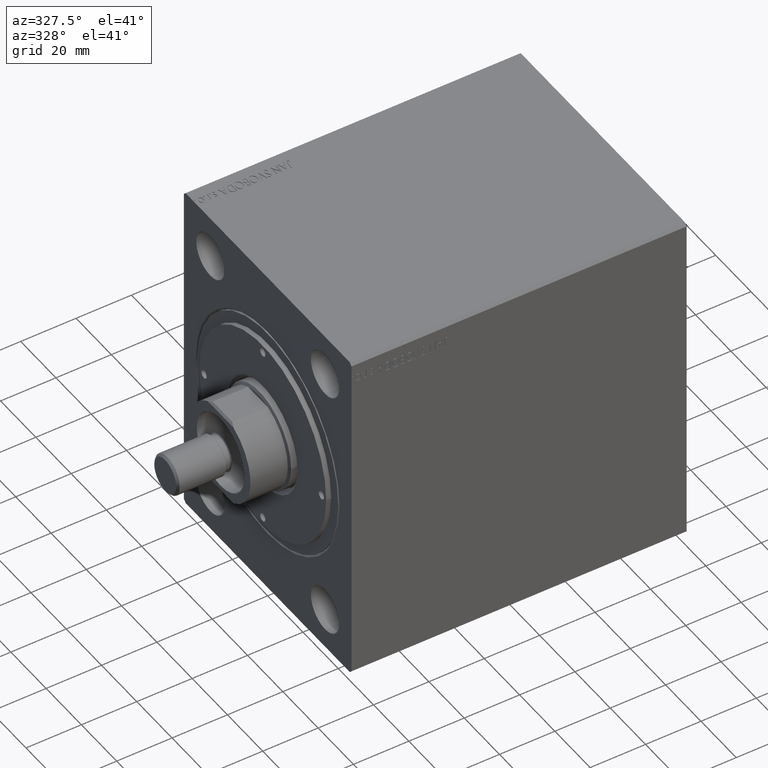
[diagram: clean part render]
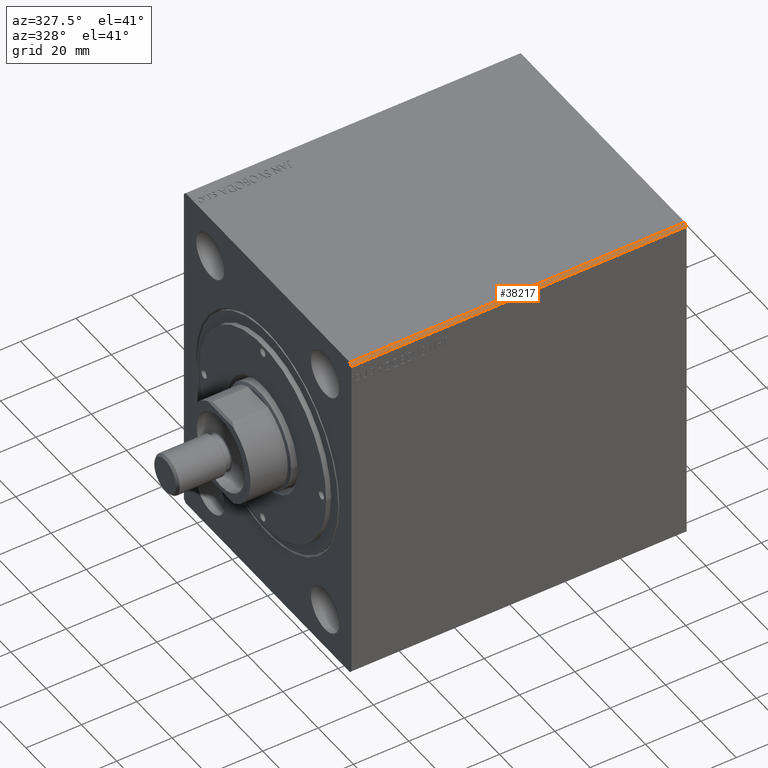
[diagram: same view with one face highlighted and labeled with its STEP entity id]
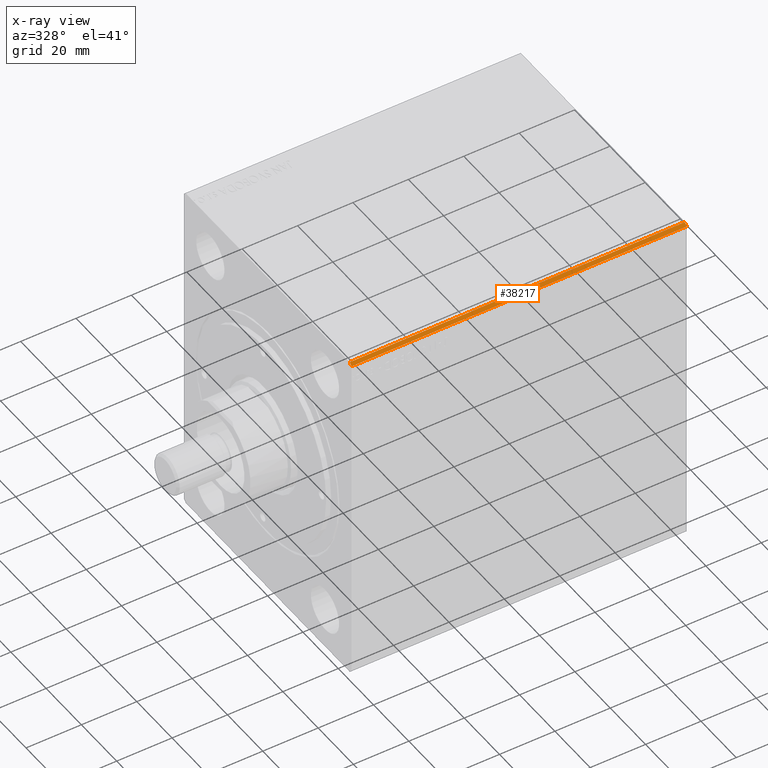
[diagram: x-ray of the same camera — body ghosted, the highlighted face saturated]
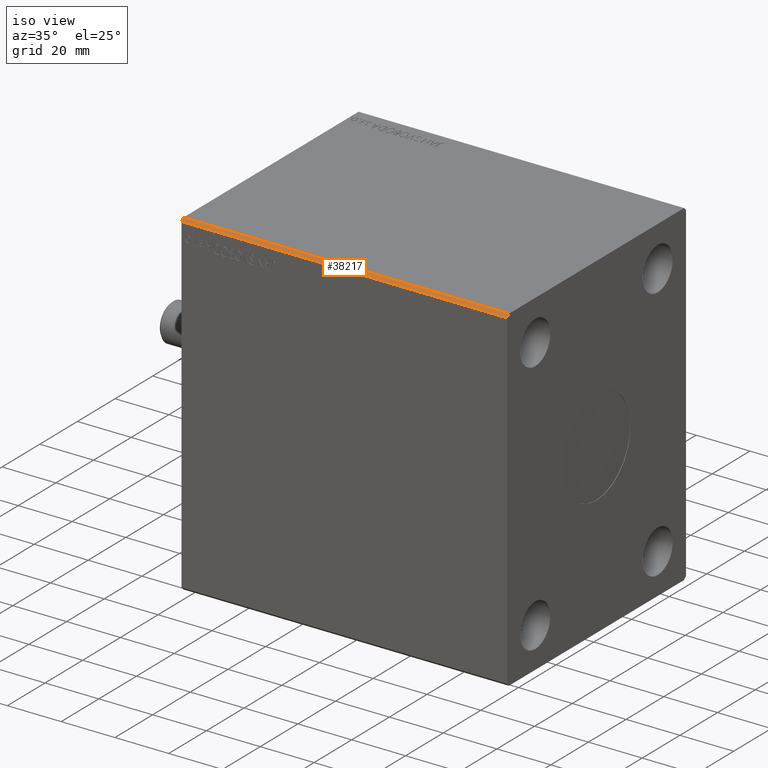
[diagram: same view with one face highlighted and labeled with its STEP entity id]
A machine part, auxiliary view. The second image highlights one B-rep face of the part: STEP entity #38217.
The next image is the same camera in x-ray: the body ghosted, the highlighted face saturated — about 0% of this face is hidden behind the body in this view.
A second angle (iso view) of the same face is appended — the face is thin or edge-on in the first view.
In plain terms, the highlighted planar face has unit normal (0, 0.7071, -0.7071).
Its self-contained STEP definition (entity closure, byte-faithful):
#2504 = CARTESIAN_POINT ( 'NONE',  ( 121.0000000000000000, -46.50000000000001421, 62.49999999999997868 ) ) ;
#4754 = EDGE_CURVE ( 'NONE', #17677, #24247, #41399, .T. ) ;
#5078 = VECTOR ( 'NONE', #20587, 1000.000000000000114 ) ;
#7270 = VECTOR ( 'NONE', #39336, 1000.000000000000000 ) ;
#8002 = CARTESIAN_POINT ( 'NONE',  ( 0.000000000000000000, -47.50000000000001421, 61.49999999999997868 ) ) ;
#9889 = EDGE_CURVE ( 'NONE', #26320, #28587, #21475, .T. ) ;
#14242 = VECTOR ( 'NONE', #20427, 1000.000000000000000 ) ;
#14290 = DIRECTION ( 'NONE',  ( 0.000000000000000000, -0.7071067811865474617, -0.7071067811865474617 ) ) ;
#14610 = VECTOR ( 'NONE', #14290, 1000.000000000000114 ) ;
#16068 = AXIS2_PLACEMENT_3D ( 'NONE', #2504, #16433, #23838 ) ;
#16433 = DIRECTION ( 'NONE',  ( 0.000000000000000000, 0.7071067811865475727, -0.7071067811865475727 ) ) ;
#17677 = VERTEX_POINT ( 'NONE', #33718 ) ;
#17752 = ORIENTED_EDGE ( 'NONE', *, *, #22825, .F. ) ;
#20427 = DIRECTION ( 'NONE',  ( -1.000000000000000000, -0.000000000000000000, -0.000000000000000000 ) ) ;
#20587 = DIRECTION ( 'NONE',  ( 0.000000000000000000, -0.7071067811865474617, -0.7071067811865474617 ) ) ;
#21475 = LINE ( 'NONE', #42071, #14610 ) ;
#22175 = ORIENTED_EDGE ( 'NONE', *, *, #29503, .T. ) ;
#22825 = EDGE_CURVE ( 'NONE', #28587, #24247, #43929, .T. ) ;
#23838 = DIRECTION ( 'NONE',  ( 0.000000000000000000, 0.7071067811865474617, 0.7071067811865474617 ) ) ;
#24247 = VERTEX_POINT ( 'NONE', #8002 ) ;
#25690 = CARTESIAN_POINT ( 'NONE',  ( 121.0000000000000000, -46.50000000000001421, 62.49999999999997868 ) ) ;
#26286 = CARTESIAN_POINT ( 'NONE',  ( 121.0000000000000000, -46.50000000000001421, 62.49999999999997868 ) ) ;
#26320 = VERTEX_POINT ( 'NONE', #26286 ) ;
#26469 = CARTESIAN_POINT ( 'NONE',  ( 121.0000000000000000, -47.50000000000001421, 61.49999999999997868 ) ) ;
#27343 = EDGE_LOOP ( 'NONE', ( #32651, #17752, #28765, #22175 ) ) ;
#28587 = VERTEX_POINT ( 'NONE', #41333 ) ;
#28765 = ORIENTED_EDGE ( 'NONE', *, *, #9889, .F. ) ;
#29503 = EDGE_CURVE ( 'NONE', #26320, #17677, #36411, .T. ) ;
#30641 = CARTESIAN_POINT ( 'NONE',  ( 0.000000000000000000, -46.50000000000001421, 62.49999999999997868 ) ) ;
#32651 = ORIENTED_EDGE ( 'NONE', *, *, #4754, .T. ) ;
#33459 = PLANE ( 'NONE',  #16068 ) ;
#33718 = CARTESIAN_POINT ( 'NONE',  ( 0.000000000000000000, -46.50000000000001421, 62.49999999999997868 ) ) ;
#36411 = LINE ( 'NONE', #25690, #7270 ) ;
#38217 = ADVANCED_FACE ( 'NONE', ( #39747 ), #33459, .F. ) ;
#39336 = DIRECTION ( 'NONE',  ( -1.000000000000000000, -0.000000000000000000, -0.000000000000000000 ) ) ;
#39747 = FACE_OUTER_BOUND ( 'NONE', #27343, .T. ) ;
#41333 = CARTESIAN_POINT ( 'NONE',  ( 121.0000000000000000, -47.50000000000001421, 61.49999999999997868 ) ) ;
#41399 = LINE ( 'NONE', #30641, #5078 ) ;
#42071 = CARTESIAN_POINT ( 'NONE',  ( 121.0000000000000000, -46.50000000000001421, 62.49999999999997868 ) ) ;
#43929 = LINE ( 'NONE', #26469, #14242 ) ;